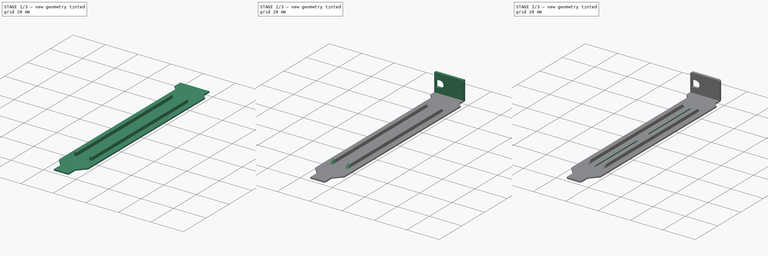
[diagram: build sequence overview — one tinted view per stage of 3, left to right]
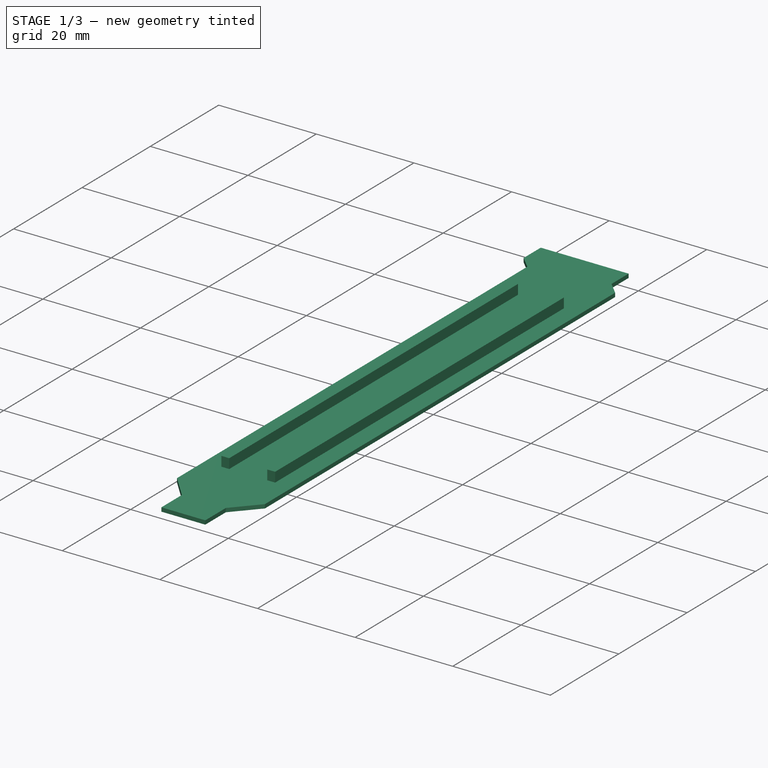
[diagram: stage 1 of 3 — iso view after this stage's code; geometry added in this stage tinted green]
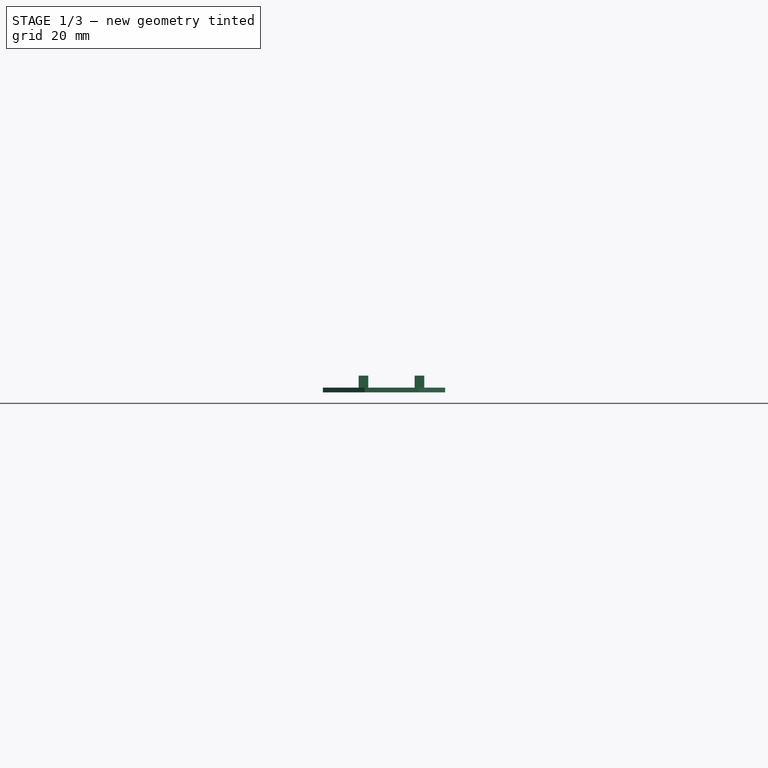
[diagram: stage 1 of 3 — front view after this stage's code; geometry added in this stage tinted green]
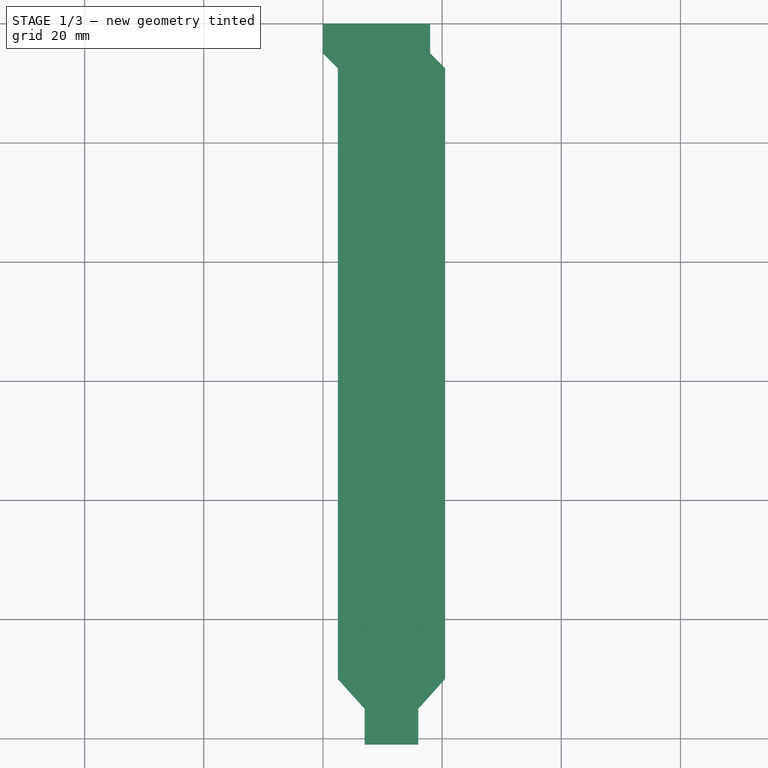
[diagram: stage 1 of 3 — top view after this stage's code; geometry added in this stage tinted green]
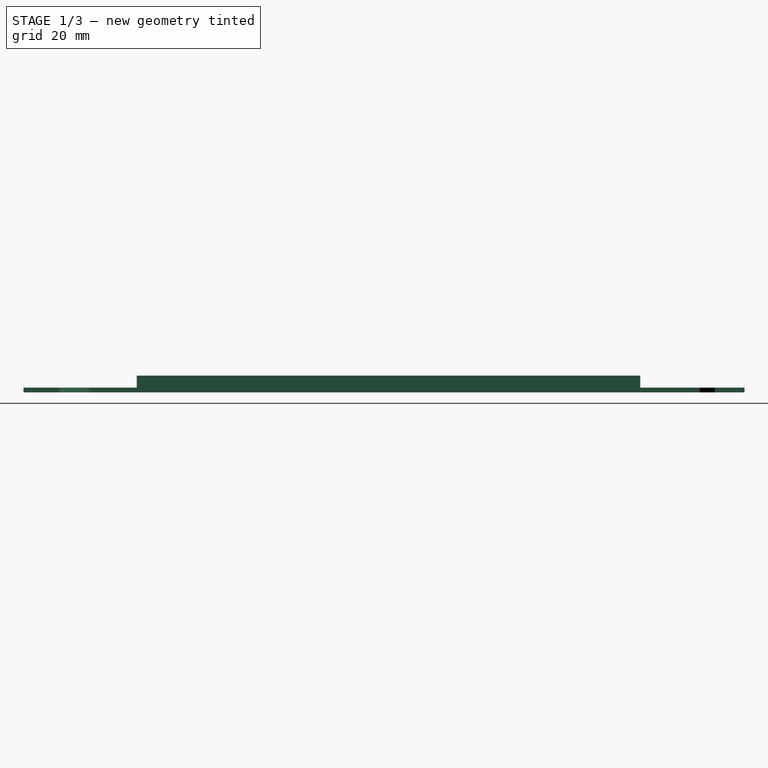
[diagram: stage 1 of 3 — right view after this stage's code; geometry added in this stage tinted green]
FCSTD DOCUMENT  (FreeCAD 0.20R29410 (Git))
Label: PCSlotCover
License: All rights reserved
LicenseURL: http://en.wikipedia.org/wiki/All_rights_reserved
objects: Sketcher::SketchObject×5, PartDesign::Pad×3, PartDesign::Pocket×2, PartDesign::Chamfer×1, PartDesign::Fillet×1, PartDesign::Body×1, App::Part×1
note: 20 computed .brp shape members not serialized (recipe doc carries the construction recipe); baked Part::Feature solids carry a one-line shape summary decoded from their .brp

FEATURE [Sketcher::SketchObject] Sketch
  FullyConstrained = true
  MapMode = 5
  Support = -> [XY_Plane001]
  sketch-geometry (19):
    g0: LineSegment StartX=2.5 StartY=-7.5 StartZ=0 EndX=18 EndY=-7.5 EndZ=0
    g1: LineSegment StartX=20.5 StartY=-7.5 StartZ=0 EndX=20.5 EndY=-110 EndZ=0
    g2: LineSegment StartX=20.5 StartY=-110 StartZ=0 EndX=2.5 EndY=-110 EndZ=0
    g3: LineSegment StartX=2.5 StartY=-110 StartZ=0 EndX=2.5 EndY=-7.5 EndZ=0
    g4: LineSegment StartX=2.5 StartY=-110 StartZ=0 EndX=7 EndY=-115 EndZ=0
    g5: LineSegment StartX=7 StartY=-115 StartZ=0 EndX=7 EndY=-121 EndZ=0
    g6: LineSegment StartX=7 StartY=-121 StartZ=0 EndX=16 EndY=-121 EndZ=0
    g7: LineSegment StartX=16 StartY=-121 StartZ=0 EndX=16 EndY=-115 EndZ=0
    g8: LineSegment StartX=16 StartY=-115 StartZ=0 EndX=20.5 EndY=-110 EndZ=0
    g9: LineSegment StartX=7 StartY=-115 StartZ=0 EndX=16 EndY=-115 EndZ=0
    g10: LineSegment StartX=11.5 StartY=-7.5 StartZ=0 EndX=11.5 EndY=-121 EndZ=0
    g11: LineSegment StartX=2.5 StartY=-7.5 StartZ=0 EndX=0 EndY=-5 EndZ=0
    g12: LineSegment StartX=0 StartY=-5 StartZ=0 EndX=18 EndY=-5 EndZ=0
    g13: LineSegment StartX=18 StartY=-5 StartZ=0 EndX=20.5 EndY=-7.5 EndZ=0
    g14: LineSegment StartX=18 StartY=-5 StartZ=0 EndX=18 EndY=-7.5 EndZ=0
    g15: LineSegment StartX=18 StartY=-7.5 StartZ=0 EndX=20.5 EndY=-7.5 EndZ=0
    g16: LineSegment StartX=0 StartY=-5 StartZ=0 EndX=0 EndY=0 EndZ=0
    g17: LineSegment StartX=0 StartY=0 StartZ=0 EndX=18 EndY=0 EndZ=0
    g18: LineSegment StartX=18 StartY=0 StartZ=0 EndX=18 EndY=-5 EndZ=0
  constraints (51):
    c: Coincident(g1,g2)
    c: Coincident(g2,g3)
    c: Horizontal(g0)
    c: Horizontal(g2)
    c: Vertical(g1)
    c: Vertical(g3)
    c: DistanceY(g3,g3) = 102.5
    c: Coincident(g4,g5)
    c: Coincident(g5,g6)
    c: Coincident(g6,g7)
    c: Coincident(g7,g8)
    c: Coincident(g1,g8)
    c: Vertical(g5)
    c: Vertical(g7)
    c: Coincident(g2,g4)
    c: Coincident(g4,g9)
    c: Coincident(g7,g9)
    c: Horizontal(g9)
    c: PointOnObject(g10,g6)
    c: PointOnObject(g10,g0)
    c: Symmetric(g5,g6,g10)
    c: DistanceY(g4,g2) = 5
    c: DistanceY(g5,g5) = 6
    c: Horizontal(g12)
    c: Vertical(g14)
    c: Equal(g15,g14)
    c: Equal(g13,g11)
    c: DistanceY(g11,g11) = 2.5
    c: Coincident(g16,g17)
    c: Coincident(g17,g18)
    c: Vertical(g18)
    c: Horizontal(g17)
    c: DistanceY(g16,g16) = 5
    c: Symmetric(g2,g1,g10)
    c: DistanceX(g6,g6) = 9
    c: Coincident(g11,g12)
    c: Coincident(g11,g16)
    c: Coincident(g0,g3)
    c: Coincident(g0,g11)
    c: DistanceX(g2,g2) = 18
    c: Coincident(g1,g13)
    c: Coincident(g13,g18)
    c: Coincident(g12,g13)
    c: Coincident(g15,g0)
    c: Coincident(g14,g0)
    c: Coincident(g15,g1)
    c: Coincident(g14,g13)
    c: Equal(g12,g17)
    c: Equal(g12,g2)
    c: Coincident(g16,g-1)
    c: DistanceY(g6,g17) = 121
FEATURE [PartDesign::Pad] Pad
  AllowMultiFace = false
  Direction = (0,0,1)
  Length = 0.8
  Length2 = 100
  Profile = -> Sketch
  Type = 0
FEATURE [Sketcher::SketchObject] Sketch001
  ExternalGeometry = -> [Sketch]
  FullyConstrained = true
  MapMode = 5
  Support = -> [XY_Plane001]
  sketch-geometry (4):
    g0: LineSegment StartX=0 StartY=0 StartZ=0 EndX=18 EndY=0 EndZ=0
    g1: LineSegment StartX=18 StartY=0 StartZ=0 EndX=18 EndY=-1.6 EndZ=0
    g2: LineSegment StartX=18 StartY=-1.6 StartZ=0 EndX=0 EndY=-1.6 EndZ=0
    g3: LineSegment StartX=0 StartY=-1.6 StartZ=0 EndX=0 EndY=0 EndZ=0
  constraints (10):
    c: Coincident(g0,g1)
    c: Coincident(g1,g2)
    c: Coincident(g2,g3)
    c: Coincident(g3,g0)
    c: Horizontal(g2)
    c: Vertical(g1)
    c: Vertical(g3)
    c: Coincident(g0,g-3)
    c: Coincident(g0,g-3)
    c: DistanceY(g3,g3) = 1.6
FEATURE [Sketcher::SketchObject] Sketch002
  ExternalGeometry = -> [Sketch001]
  FullyConstrained = true
  MapMode = 5
  Placement = pos=(0,0,0) rot=(1,0,0;1.5708rad)
  Support = -> [XZ_Plane001]
  expr: Constraints[13] = Pad.Length
  expr: Constraints[9] = Pad001.Length
  sketch-geometry (10):
    g0: LineSegment StartX=0 StartY=0 StartZ=0 EndX=18 EndY=4e-16 EndZ=0
    g1: LineSegment StartX=18 StartY=4e-16 StartZ=0 EndX=18 EndY=12 EndZ=0
    g2: LineSegment StartX=18 StartY=12 StartZ=0 EndX=0 EndY=12 EndZ=0
    g3: LineSegment StartX=0 StartY=12 StartZ=0 EndX=0 EndY=0 EndZ=0
    g4: LineSegment StartX=0 StartY=0.8 StartZ=0 EndX=18 EndY=0.8 EndZ=0
    g5: LineSegment StartX=3.55 StartY=8.2 StartZ=0 EndX=0.8 EndY=8.2 EndZ=0
    g6: LineSegment StartX=3.55 StartY=3.9 StartZ=0 EndX=0.8 EndY=3.9 EndZ=0
    g7: LineSegment StartX=0.8 StartY=8.2 StartZ=0 EndX=0.8 EndY=3.9 EndZ=0
    g8: LineSegment StartX=3.55 StartY=8.2 StartZ=0 EndX=3.55 EndY=3.9 EndZ=0
    g9: ArcOfCircle CenterX=3.55 CenterY=6.05 CenterZ=0 NormalX=0 NormalY=0 NormalZ=1 AngleXU=0 Radius=2.15 StartAngle=4.71239 EndAngle=7.85398
  constraints (29):
    c: Coincident(g0,g1)
    c: Coincident(g1,g2)
    c: Coincident(g2,g3)
    c: Coincident(g3,g0)
    c: Horizontal(g2)
    c: Vertical(g1)
    c: Vertical(g3)
    c: Coincident(g0,g-3)
    c: Coincident(g0,g-3)
    c: DistanceY(g1,g1) = 12
    c: PointOnObject(g4,g1)
    c: Horizontal(g4)
    c: PointOnObject(g4,g3)
    c: DistanceY(g0,g4) = 0.8
    c: Horizontal(g5)
    c: Horizontal(g6)
    c: Equal(g5,g6)
    c: PointOnObject(g9,g8)
    c: DistanceY(g5,g1) = 3.8
    c: DistanceY(g7,g7) = 4.3
    c: Vertical(g7)
    c: Coincident(g9,g8)
    c: Coincident(g8,g9)
    c: Coincident(g5,g7)
    c: DistanceX(g2,g5) = 3.55
    c: DistanceX(g2,g5) = 0.8
    c: Coincident(g6,g7)
    c: Coincident(g5,g9)
    c: Coincident(g6,g9)
FEATURE [Sketcher::SketchObject] Sketch003
  AttachmentOffset = pos=(0,0,0.8) rot=(0,0,1;0rad)
  ExternalGeometry = -> [Sketch]
  FullyConstrained = true
  MapMode = 5
  Placement = pos=(0,0,0.8) rot=(0,0,1;0rad)
  Support = -> [XY_Plane001]
  expr: .AttachmentOffset.Base.z = Pad.Length
  sketch-geometry (12):
    g0: LineSegment StartX=6 StartY=-17.5 StartZ=0 EndX=7.6 EndY=-17.5 EndZ=0
    g1: LineSegment StartX=7.6 StartY=-17.5 StartZ=0 EndX=7.6 EndY=-102 EndZ=0
    g2: LineSegment StartX=7.6 StartY=-102 StartZ=0 EndX=6 EndY=-102 EndZ=0
    g3: LineSegment StartX=6 StartY=-102 StartZ=0 EndX=6 EndY=-17.5 EndZ=0
    g4: LineSegment StartX=15.4 StartY=-17.5 StartZ=0 EndX=17 EndY=-17.5 EndZ=0
    g5: LineSegment StartX=17 StartY=-17.5 StartZ=0 EndX=17 EndY=-102 EndZ=0
    g6: LineSegment StartX=17 StartY=-102 StartZ=0 EndX=15.4 EndY=-102 EndZ=0
    g7: LineSegment StartX=15.4 StartY=-102 StartZ=0 EndX=15.4 EndY=-17.5 EndZ=0
    g8: LineSegment StartX=7.6 StartY=-17.5 StartZ=0 EndX=15.4 EndY=-17.5 EndZ=0
    g9: LineSegment StartX=7.6 StartY=-102 StartZ=0 EndX=15.4 EndY=-102 EndZ=0
    g10: LineSegment StartX=6 StartY=-17.5 StartZ=0 EndX=2.5 EndY=-17.5 EndZ=0
    g11: LineSegment StartX=17 StartY=-17.5 StartZ=0 EndX=20.5 EndY=-17.5 EndZ=0
  constraints (34):
    c: Coincident(g0,g1)
    c: Coincident(g1,g2)
    c: Coincident(g2,g3)
    c: Coincident(g3,g0)
    c: Horizontal(g0)
    c: Horizontal(g2)
    c: Vertical(g1)
    c: Vertical(g3)
    c: Coincident(g4,g5)
    c: Coincident(g5,g6)
    c: Coincident(g6,g7)
    c: Coincident(g7,g4)
    c: Horizontal(g4)
    c: Horizontal(g6)
    c: Vertical(g5)
    c: Vertical(g7)
    c: Coincident(g8,g0)
    c: Coincident(g8,g4)
    c: Horizontal(g8)
    c: Coincident(g9,g1)
    c: Coincident(g9,g6)
    c: Horizontal(g9)
    c: Coincident(g10,g0)
    c: PointOnObject(g10,g-3)
    c: Horizontal(g10)
    c: Coincident(g11,g4)
    c: PointOnObject(g11,g-4)
    c: Horizontal(g11)
    c: Equal(g11,g10)
    c: Equal(g0,g4)
    c: DistanceX(g4,g4) = 1.6
    c: DistanceX(g0,g4) = 11
    c: DistanceY(g-3,g2) = 8  'BottomOffset'
    c: DistanceY(g10,g-3) = 10  'TopOffset'
FEATURE [PartDesign::Pad] Pad002
  AllowMultiFace = false
  BaseFeature = -> Pad
  Direction = (0,0,1)
  Length = 2
  Length2 = 100
  Profile = -> Sketch003
  Type = 0
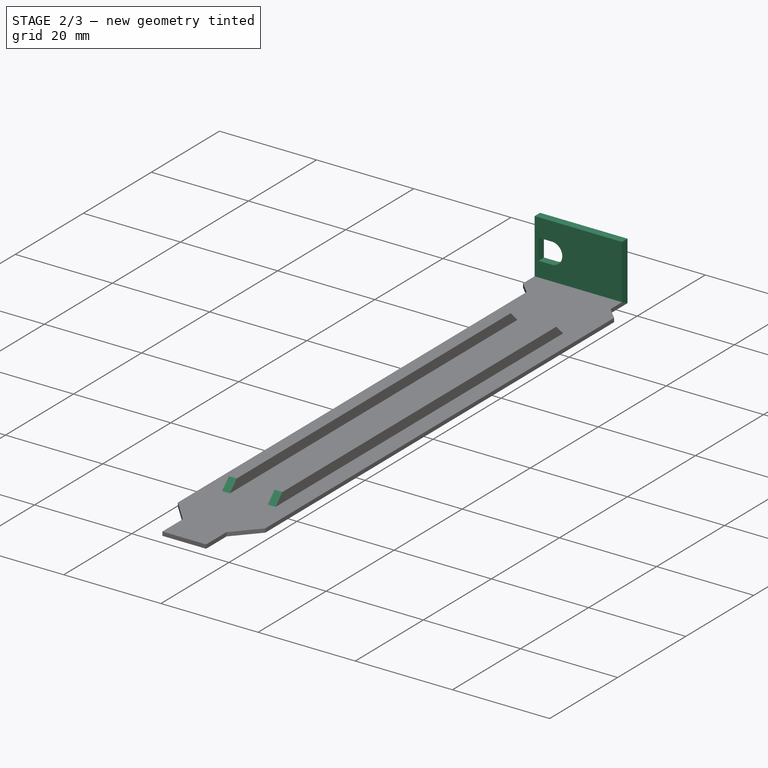
[diagram: stage 2 of 3 — iso view after this stage's code; geometry added in this stage tinted green]
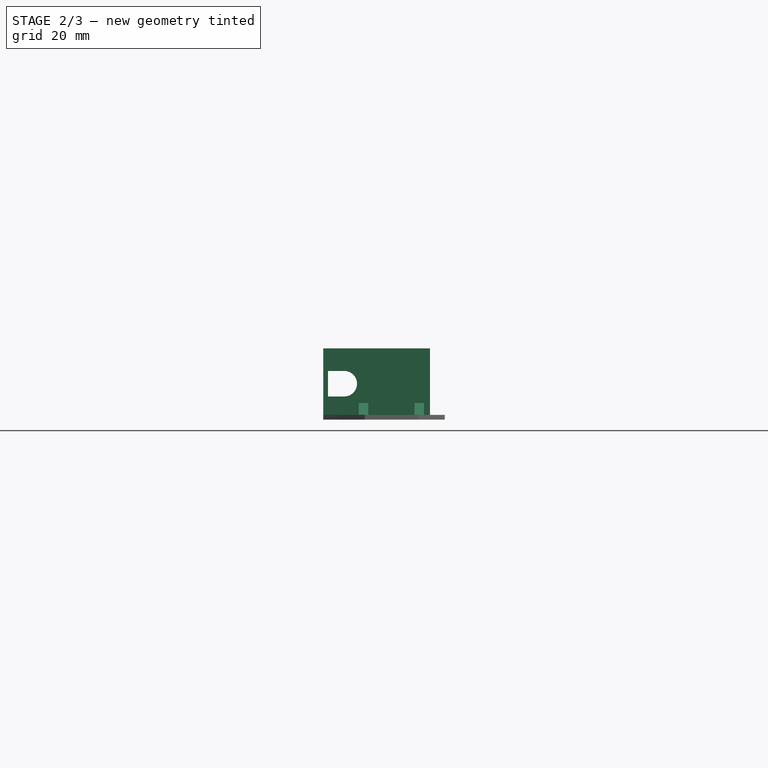
[diagram: stage 2 of 3 — front view after this stage's code; geometry added in this stage tinted green]
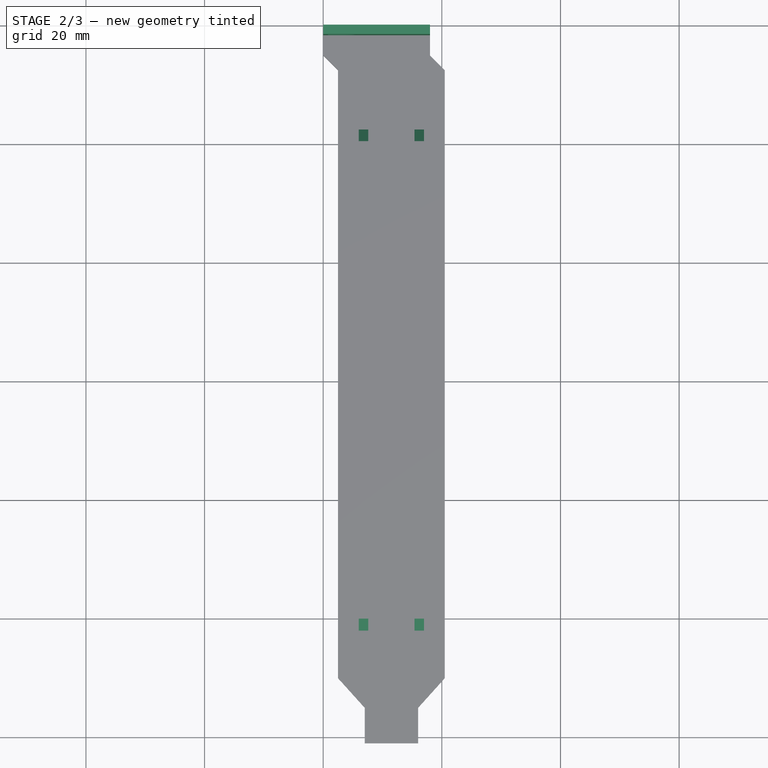
[diagram: stage 2 of 3 — top view after this stage's code; geometry added in this stage tinted green]
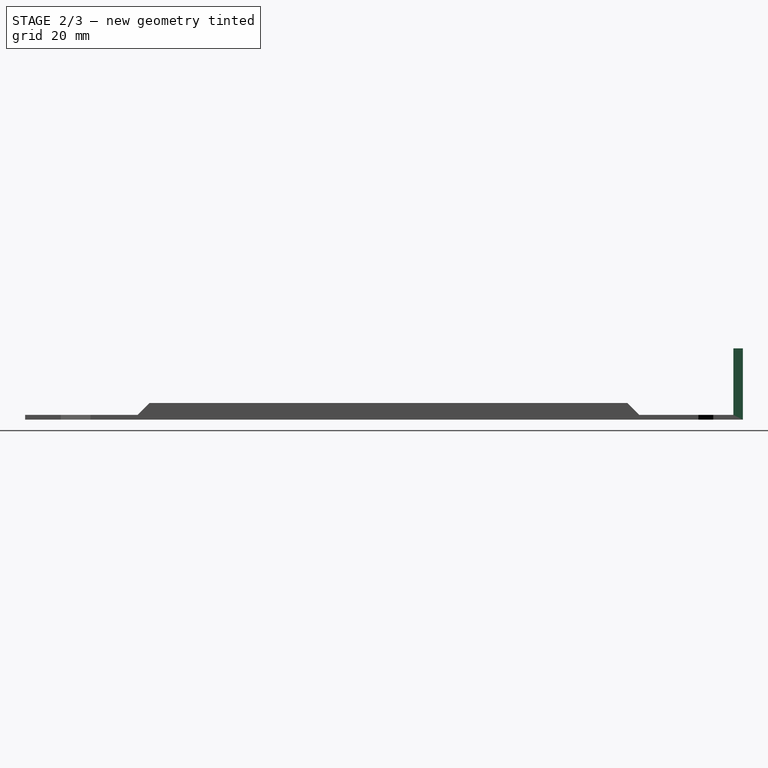
[diagram: stage 2 of 3 — right view after this stage's code; geometry added in this stage tinted green]
FEATURE [Sketcher::SketchObject] Sketch004
  AttachmentOffset = pos=(0,0,0.8) rot=(0,0,1;0rad)
  ExternalGeometry = -> [Sketch]
  FullyConstrained = true
  MapMode = 5
  Placement = pos=(0,0,0.8) rot=(0,0,1;0rad)
  Support = -> [XY_Plane001]
  expr: .AttachmentOffset.Base.z = Pad.Length
  expr: Constraints[24] = Sketch003.Constraints.TopOffset
  expr: Constraints[25] = Sketch003.Constraints.BottomOffset
  sketch-geometry (12):
    g0: LineSegment StartX=11.1 StartY=-17.5 StartZ=0 EndX=11.9 EndY=-17.5 EndZ=0
    g1: LineSegment StartX=11.9 StartY=-17.5 StartZ=0 EndX=11.9 EndY=-54.75 EndZ=0
    g2: LineSegment StartX=11.9 StartY=-54.75 StartZ=0 EndX=11.1 EndY=-54.75 EndZ=0
    g3: LineSegment StartX=11.1 StartY=-54.75 StartZ=0 EndX=11.1 EndY=-17.5 EndZ=0
    g4: LineSegment StartX=11.1 StartY=-64.75 StartZ=0 EndX=11.9 EndY=-64.75 EndZ=0
    g5: LineSegment StartX=11.9 StartY=-64.75 StartZ=0 EndX=11.9 EndY=-102 EndZ=0
    g6: LineSegment StartX=11.9 StartY=-102 StartZ=0 EndX=11.1 EndY=-102 EndZ=0
    g7: LineSegment StartX=11.1 StartY=-102 StartZ=0 EndX=11.1 EndY=-64.75 EndZ=0
    g8: LineSegment StartX=11.1 StartY=-54.75 StartZ=0 EndX=11.1 EndY=-64.75 EndZ=0
    g9: LineSegment StartX=11.5 StartY=-17.5 StartZ=0 EndX=11.5 EndY=-102 EndZ=0
    g10: LineSegment StartX=2.5 StartY=-7.5 StartZ=0 EndX=20.5 EndY=-7.5 EndZ=0
    g11: LineSegment StartX=11.1 StartY=-17.5 StartZ=0 EndX=11.1 EndY=-7.5 EndZ=0
  constraints (33):
    c: Coincident(g0,g1)
    c: Coincident(g1,g2)
    c: Coincident(g2,g3)
    c: Coincident(g3,g0)
    c: Horizontal(g2)
    c: Vertical(g1)
    c: Vertical(g3)
    c: DistanceX(g0,g0) = 0.8
    c: Coincident(g4,g5)
    c: Coincident(g5,g6)
    c: Coincident(g6,g7)
    c: Coincident(g7,g4)
    c: Horizontal(g4)
    c: Horizontal(g6)
    c: Vertical(g5)
    c: Vertical(g7)
    c: Coincident(g8,g2)
    c: Coincident(g8,g4)
    c: Vertical(g8)
    c: Equal(g4,g2)
    c: PointOnObject(g9,g0)
    c: PointOnObject(g9,g6)
    c: Symmetric(g0,g0,g9)
    c: Symmetric(g-3,g-4,g9)
    c: DistanceY(g0,g-3) = 10
    c: DistanceY(g-3,g6) = 8
    c: Coincident(g10,g-3)
    c: Coincident(g10,g-4)
    c: Coincident(g11,g0)
    c: PointOnObject(g11,g10)
    c: Vertical(g11)
    c: Equal(g11,g8)
    c: Equal(g3,g7)
FEATURE [PartDesign::Chamfer] Chamfer
  Angle = 45
  Base = -> Pad002 [Edge55,Edge47,Edge51,Edge59]
  BaseFeature = -> Pad002
  ChamferType = 0
  FlipDirection = false
  Size = 1.99
  Size2 = 1
  SupportTransform = false
  UseAllEdges = false
FEATURE [PartDesign::Pad] Pad001
  AllowMultiFace = false
  BaseFeature = -> Chamfer
  Direction = (0,0,1)
  Length = 12
  Length2 = 100
  Profile = -> Sketch001
  Type = 0
FEATURE [PartDesign::Pocket] Pocket
  AllowMultiFace = false
  BaseFeature = -> Pad001
  Direction = (0,1,2e-16)
  Length = 5
  Length2 = 100
  Profile = -> Sketch002
  Refine = true
  Reversed = true
  Type = 0
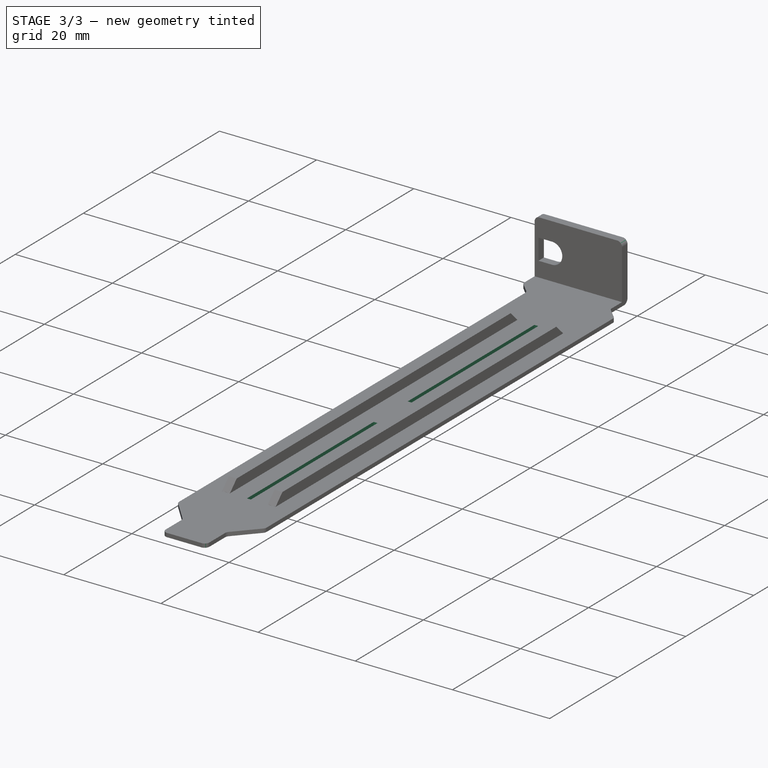
[diagram: stage 3 of 3 — iso view after this stage's code; geometry added in this stage tinted green]
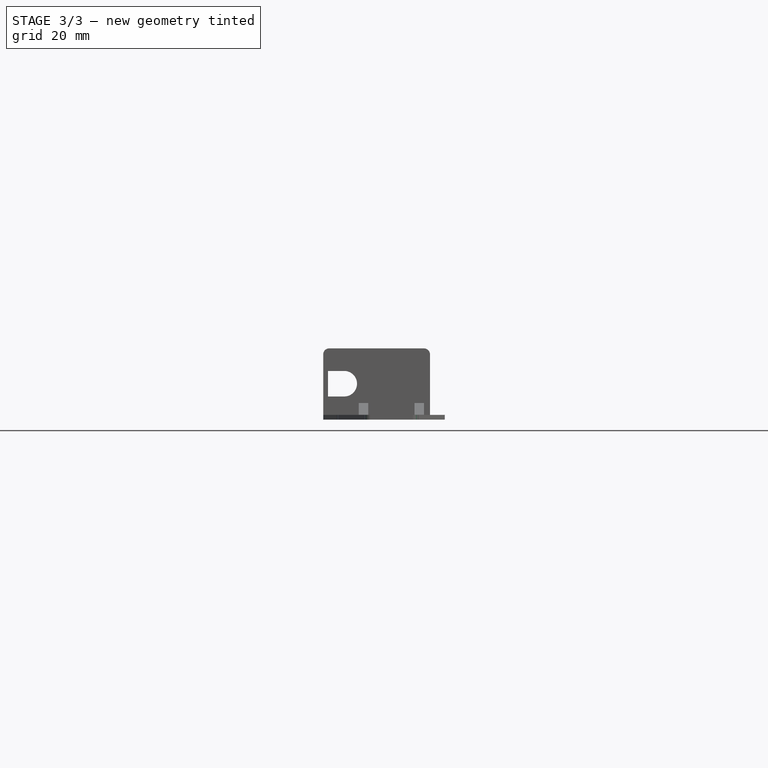
[diagram: stage 3 of 3 — front view after this stage's code; geometry added in this stage tinted green]
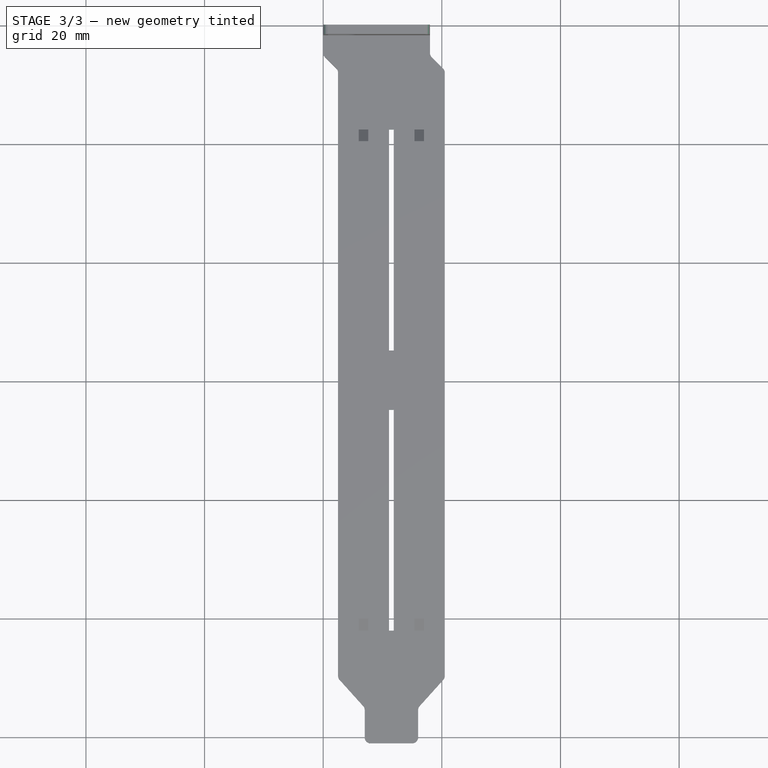
[diagram: stage 3 of 3 — top view after this stage's code; geometry added in this stage tinted green]
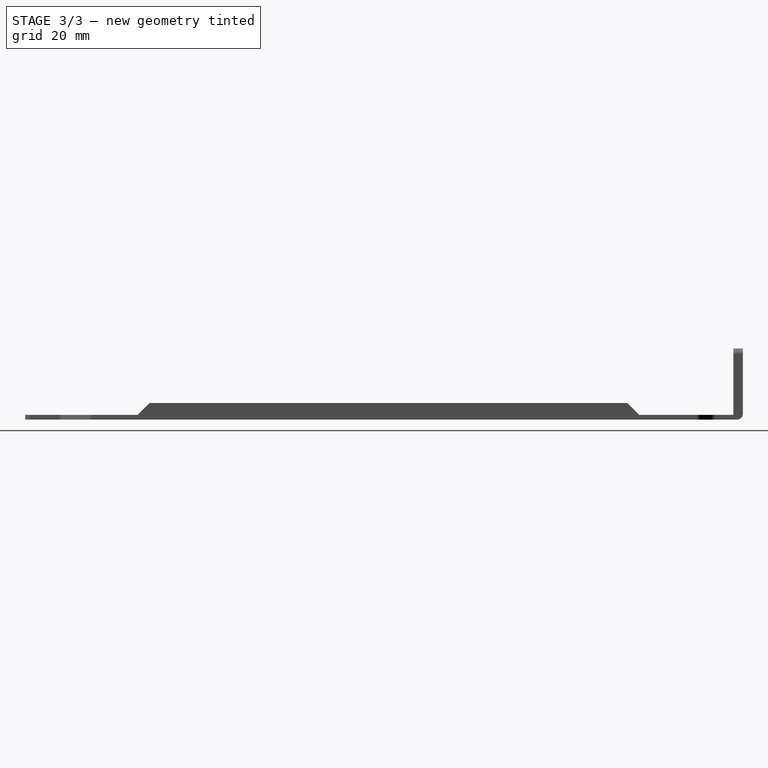
[diagram: stage 3 of 3 — right view after this stage's code; geometry added in this stage tinted green]
FEATURE [PartDesign::Fillet] Fillet
  Base = -> Pocket [Edge75,Edge74,Edge90,Edge58,Edge57,Edge35,Edge36,Edge38,Edge40,Edge42,Edge44,Edge46,Edge48]
  BaseFeature = -> Pocket
  Radius = 0.99
  SupportTransform = false
  UseAllEdges = false
FEATURE [PartDesign::Pocket] Pocket001
  AllowMultiFace = false
  BaseFeature = -> Fillet
  Direction = (0,0,-1)
  Length = 5
  Length2 = 100
  Profile = -> Sketch004
  Type = 0
FEATURE [PartDesign::Body] Body
  Group = -> [Sketch,Pad,Sketch003,Pad002,Sketch001,Chamfer,Pad001,Sketch002,Pocket,Fillet,Sketch004,Pocket001]
  Origin = -> Origin001
  Tip = -> Pocket001
FEATURE [App::Part] Part
  Group = -> [Body]
  Origin = -> Origin
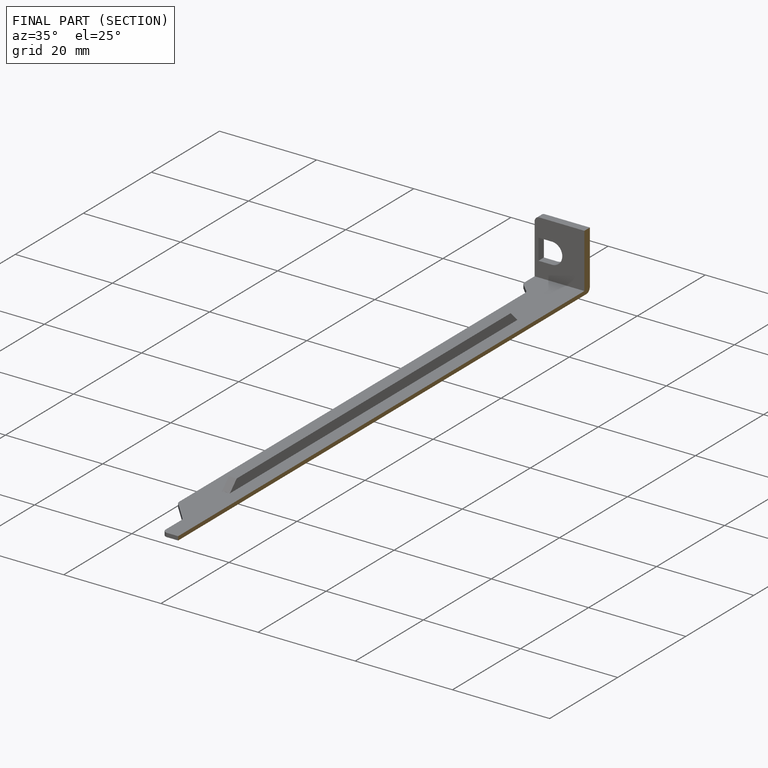
[diagram: finished part — half-section view (interior)]
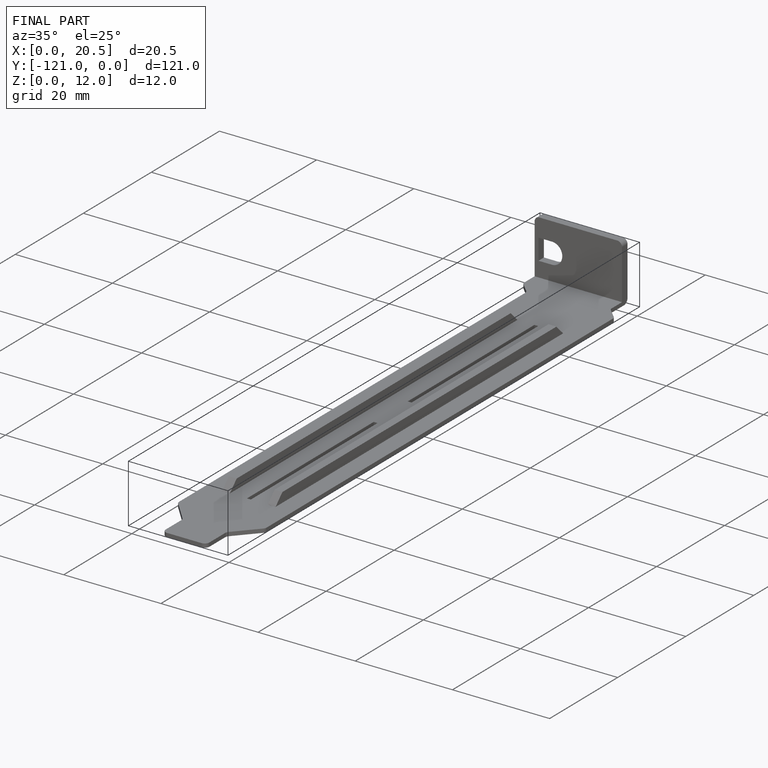
[diagram: finished part — iso view with bounding-box wireframe]
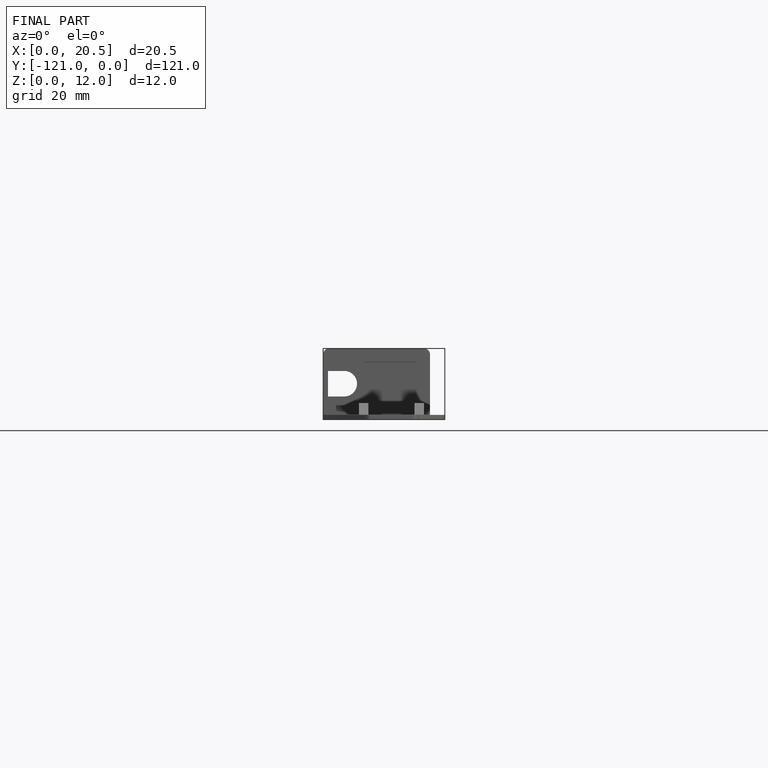
[diagram: finished part — front view with bounding-box wireframe]
